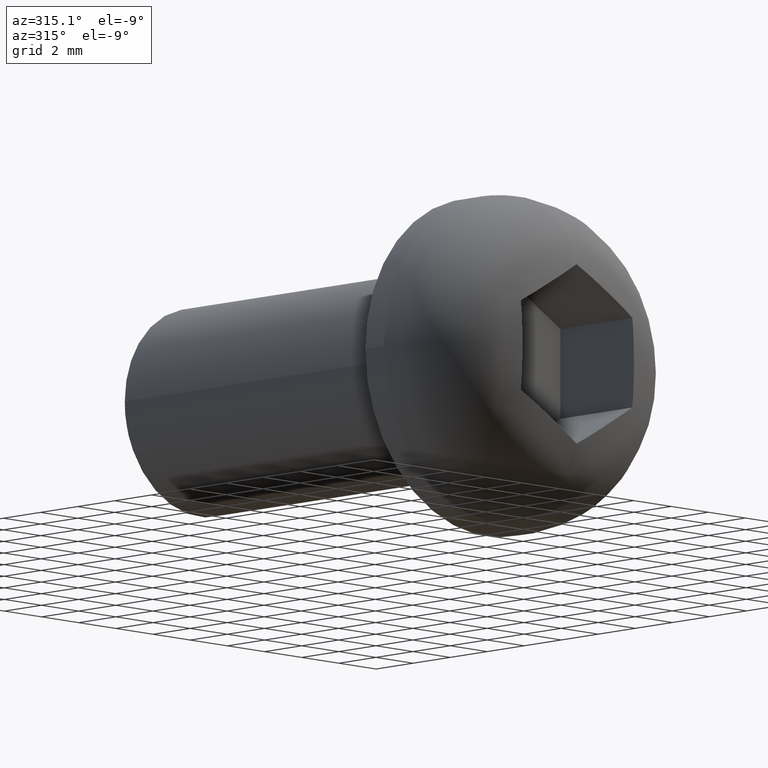
[diagram: clean part render]
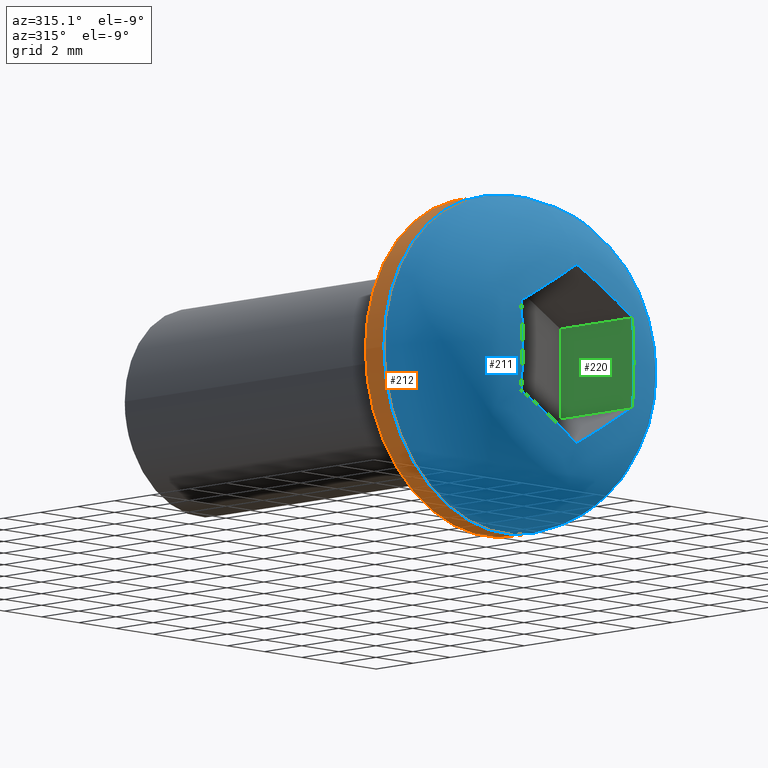
[diagram: same view with three faces highlighted in distinct colors, each labeled with its STEP entity id]
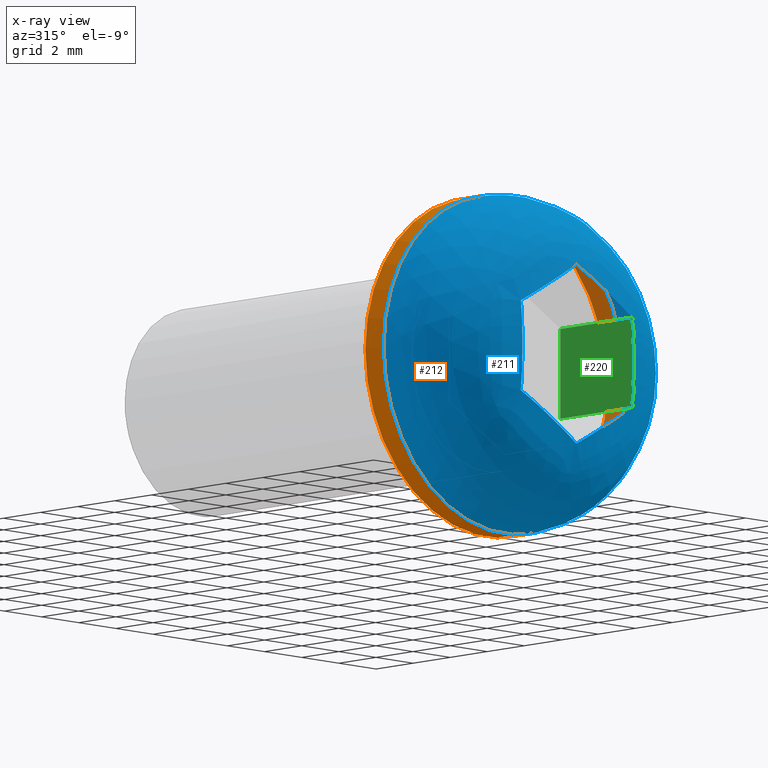
[diagram: x-ray of the same camera — body ghosted, the three highlighted faces saturated]
A machine part, auxiliary view with three faces highlighted in distinct colors.
The next image is the same camera in x-ray (body ghosted, the three faces saturated) — at least one of them is partly hidden behind the body in this view.
Their STEP definitions:

[orange] entity #212 — the highlighted cylindrical surface (bore or boss wall) has radius 6.5 mm, axis along (0, 1, 0).
#26=LINE('',#404,#41);
#41=VECTOR('',#276,6.49999999997408);
#56=CYLINDRICAL_SURFACE('',#249,6.49999999997408);
#59=FACE_OUTER_BOUND('',#72,.T.);
#72=EDGE_LOOP('',(#161,#162,#163,#164,#165));
#85=CIRCLE('',#247,6.49999999997408);
#86=CIRCLE('',#248,6.49999999997408);
#87=CIRCLE('',#250,6.49999999997408);
#106=VERTEX_POINT('',#383);
#107=VERTEX_POINT('',#387);
#109=VERTEX_POINT('',#402);
#126=EDGE_CURVE('',#107,#106,#85,.T.);
#127=EDGE_CURVE('',#106,#107,#86,.T.);
#130=EDGE_CURVE('',#109,#109,#87,.T.);
#131=EDGE_CURVE('',#109,#107,#26,.T.);
#161=ORIENTED_EDGE('',*,*,#130,.F.);
#162=ORIENTED_EDGE('',*,*,#131,.T.);
#163=ORIENTED_EDGE('',*,*,#126,.T.);
#164=ORIENTED_EDGE('',*,*,#127,.T.);
#165=ORIENTED_EDGE('',*,*,#131,.F.);
#212=ADVANCED_FACE('',(#59),#56,.T.);
#247=AXIS2_PLACEMENT_3D('',#388,#268,#269);
#248=AXIS2_PLACEMENT_3D('',#389,#270,#271);
#249=AXIS2_PLACEMENT_3D('',#401,#272,#273);
#250=AXIS2_PLACEMENT_3D('',#403,#274,#275);
#268=DIRECTION('center_axis',(0.,1.,0.));
#269=DIRECTION('ref_axis',(1.,0.,0.));
#270=DIRECTION('center_axis',(0.,1.,0.));
#271=DIRECTION('ref_axis',(1.,0.,0.));
#272=DIRECTION('center_axis',(0.,1.,0.));
#273=DIRECTION('ref_axis',(1.,0.,0.));
#274=DIRECTION('center_axis',(0.,1.,0.));
#275=DIRECTION('ref_axis',(1.,0.,0.));
#276=DIRECTION('',(0.,-1.,0.));
#383=CARTESIAN_POINT('',(2.11831502019625E-15,-0.999999999995907,6.49999999997408));
#387=CARTESIAN_POINT('',(-6.49999999997408,-0.999999999995907,0.));
#388=CARTESIAN_POINT('Origin',(0.,-0.999999999995907,0.));
#389=CARTESIAN_POINT('Origin',(0.,-0.999999999995907,0.));
#401=CARTESIAN_POINT('Origin',(0.,-0.999999999995907,0.));
#402=CARTESIAN_POINT('',(-6.49999999997408,0.,0.));
#403=CARTESIAN_POINT('Origin',(0.,0.,0.));
#404=CARTESIAN_POINT('',(-6.49999999997408,-0.999999999995907,7.96020419442605E-16));

[blue] entity #211 — the highlighted face is a freeform B-spline surface patch.
#58=FACE_OUTER_BOUND('',#71,.T.);
#71=EDGE_LOOP('',(#150,#151,#152,#153,#154,#155,#156,#157,#158,#159,#160));
#85=CIRCLE('',#247,6.49999999997408);
#86=CIRCLE('',#248,6.49999999997408);
#92=(
BOUNDED_CURVE()
B_SPLINE_CURVE(2,(#384,#385,#386),.UNSPECIFIED.,.F.,.F.)
B_SPLINE_CURVE_WITH_KNOTS((3,3),(-1.31910336717967,4.56802477800068E-13),
 .UNSPECIFIED.)
CURVE()
GEOMETRIC_REPRESENTATION_ITEM()
RATIONAL_B_SPLINE_CURVE((0.960110479545512,0.771855393049176,1.))
REPRESENTATION_ITEM('')
);
#93=B_SPLINE_CURVE_WITH_KNOTS('',3,(#351,#352,#353,#354),.UNSPECIFIED.,
 .F.,.F.,(4,4),(1.49072927553184,1.65455197266982),.UNSPECIFIED.);
#94=B_SPLINE_CURVE_WITH_KNOTS('',3,(#356,#357,#358,#359,#360,#361),
 .UNSPECIFIED.,.F.,.F.,(4,2,4),(1.32690657839386,1.49072927553184,1.65455197266982),
 .UNSPECIFIED.);
#95=B_SPLINE_CURVE_WITH_KNOTS('',3,(#363,#364,#365,#366,#367,#368),
 .UNSPECIFIED.,.F.,.F.,(4,2,4),(1.32690657839385,1.49072927553184,1.65455197266982),
 .UNSPECIFIED.);
#96=B_SPLINE_CURVE_WITH_KNOTS('',3,(#370,#371,#372,#373,#374,#375),
 .UNSPECIFIED.,.F.,.F.,(4,2,4),(1.32690657839385,1.49072927553184,1.65455197266982),
 .UNSPECIFIED.);
#97=B_SPLINE_CURVE_WITH_KNOTS('',3,(#377,#378,#379,#380,#381,#382),
 .UNSPECIFIED.,.F.,.F.,(4,2,4),(1.32690657839385,1.49072927553184,1.65455197266982),
 .UNSPECIFIED.);
#98=B_SPLINE_CURVE_WITH_KNOTS('',3,(#391,#392,#393,#394,#395,#396),
 .UNSPECIFIED.,.F.,.F.,(4,2,4),(1.32690657839385,1.49072927553184,1.65455197266982),
 .UNSPECIFIED.);
#99=B_SPLINE_CURVE_WITH_KNOTS('',3,(#397,#398,#399,#400),.UNSPECIFIED.,
 .F.,.F.,(4,4),(1.32690657839386,1.49072927553184),.UNSPECIFIED.);
#100=VERTEX_POINT('',#349);
#101=VERTEX_POINT('',#350);
#102=VERTEX_POINT('',#355);
#103=VERTEX_POINT('',#362);
#104=VERTEX_POINT('',#369);
#105=VERTEX_POINT('',#376);
#106=VERTEX_POINT('',#383);
#107=VERTEX_POINT('',#387);
#108=VERTEX_POINT('',#390);
#120=EDGE_CURVE('',#100,#101,#93,.T.);
#121=EDGE_CURVE('',#101,#102,#94,.T.);
#122=EDGE_CURVE('',#102,#103,#95,.T.);
#123=EDGE_CURVE('',#103,#104,#96,.T.);
#124=EDGE_CURVE('',#104,#105,#97,.T.);
#125=EDGE_CURVE('',#105,#106,#92,.T.);
#126=EDGE_CURVE('',#107,#106,#85,.T.);
#127=EDGE_CURVE('',#106,#107,#86,.T.);
#128=EDGE_CURVE('',#105,#108,#98,.T.);
#129=EDGE_CURVE('',#108,#100,#99,.T.);
#150=ORIENTED_EDGE('',*,*,#120,.T.);
#151=ORIENTED_EDGE('',*,*,#121,.T.);
#152=ORIENTED_EDGE('',*,*,#122,.T.);
#153=ORIENTED_EDGE('',*,*,#123,.T.);
#154=ORIENTED_EDGE('',*,*,#124,.T.);
#155=ORIENTED_EDGE('',*,*,#125,.T.);
#156=ORIENTED_EDGE('',*,*,#126,.F.);
#157=ORIENTED_EDGE('',*,*,#127,.F.);
#158=ORIENTED_EDGE('',*,*,#125,.F.);
#159=ORIENTED_EDGE('',*,*,#128,.T.);
#160=ORIENTED_EDGE('',*,*,#129,.T.);
#210=(
BOUNDED_SURFACE()
B_SPLINE_SURFACE(2,2,((#322,#323,#324,#325,#326,#327,#328,#329,#330),(#331,
#332,#333,#334,#335,#336,#337,#338,#339),(#340,#341,#342,#343,#344,#345,
#346,#347,#348)),.UNSPECIFIED.,.F.,.T.,.F.)
B_SPLINE_SURFACE_WITH_KNOTS((3,3),(3,2,2,2,3),(-4.56802477800068E-13,1.44546849562421),
(-3.14159265358979,-1.5707963267949,0.,1.5707963267949,3.14159265358979),
 .UNSPECIFIED.)
GEOMETRIC_REPRESENTATION_ITEM()
RATIONAL_B_SPLINE_SURFACE(((1.,0.707106781186548,1.,0.707106781186548,1.,
0.707106781186548,1.,0.707106781186548,1.),(0.750000000000716,0.530330085890417,
0.750000000000716,0.530330085890417,0.750000000000716,0.530330085890417,
0.750000000000716,0.530330085890417,0.750000000000716),(1.,0.707106781186548,
1.,0.707106781186548,1.,0.707106781186548,1.,0.707106781186548,1.)))
REPRESENTATION_ITEM('')
SURFACE()
);
#211=ADVANCED_FACE('',(#58),#210,.F.);
#247=AXIS2_PLACEMENT_3D('',#388,#268,#269);
#248=AXIS2_PLACEMENT_3D('',#389,#270,#271);
#268=DIRECTION('center_axis',(0.,1.,0.));
#269=DIRECTION('ref_axis',(1.,0.,0.));
#270=DIRECTION('center_axis',(0.,1.,0.));
#271=DIRECTION('ref_axis',(1.,0.,0.));
#322=CARTESIAN_POINT('Ctrl Pts',(2.91433543963884E-15,-0.999999999995891,
6.49999999997408));
#323=CARTESIAN_POINT('Ctrl Pts',(-6.49999999997408,-0.999999999995899,6.49999999997408));
#324=CARTESIAN_POINT('Ctrl Pts',(-6.49999999997408,-0.999999999995905,1.24900090270172E-15));
#325=CARTESIAN_POINT('Ctrl Pts',(-6.49999999997408,-0.99999999999591,-6.49999999997408));
#326=CARTESIAN_POINT('Ctrl Pts',(2.91433543963884E-15,-0.999999999995902,
-6.49999999997408));
#327=CARTESIAN_POINT('Ctrl Pts',(6.49999999997408,-0.999999999995895,-6.49999999997408));
#328=CARTESIAN_POINT('Ctrl Pts',(6.49999999997409,-0.999999999995889,1.24900090270171E-15));
#329=CARTESIAN_POINT('Ctrl Pts',(6.49999999997408,-0.999999999995883,6.49999999997408));
#330=CARTESIAN_POINT('Ctrl Pts',(2.91433543963884E-15,-0.999999999995891,
6.49999999997408));
#331=CARTESIAN_POINT('Ctrl Pts',(7.15911465258913E-15,-4.52766841472535,
6.4999999999757));
#332=CARTESIAN_POINT('Ctrl Pts',(-6.49999999997569,-4.52766841472536,6.4999999999757));
#333=CARTESIAN_POINT('Ctrl Pts',(-6.49999999997569,-4.52766841472537,4.30805414182356E-15));
#334=CARTESIAN_POINT('Ctrl Pts',(-6.49999999997569,-4.52766841472537,-6.49999999997569));
#335=CARTESIAN_POINT('Ctrl Pts',(7.15911465258913E-15,-4.52766841472536,
-6.49999999997569));
#336=CARTESIAN_POINT('Ctrl Pts',(6.4999999999757,-4.52766841472536,-6.49999999997569));
#337=CARTESIAN_POINT('Ctrl Pts',(6.4999999999757,-4.52766841472535,4.30805414182354E-15));
#338=CARTESIAN_POINT('Ctrl Pts',(6.4999999999757,-4.52766841472534,6.4999999999757));
#339=CARTESIAN_POINT('Ctrl Pts',(7.15911465258913E-15,-4.52766841472535,
6.4999999999757));
#340=CARTESIAN_POINT('Ctrl Pts',(7.68971205421895E-15,-4.96862696657571,
3.));
#341=CARTESIAN_POINT('Ctrl Pts',(-2.99999999999998,-4.96862696657571,3.));
#342=CARTESIAN_POINT('Ctrl Pts',(-2.99999999999998,-4.96862696657571,4.69043579672173E-15));
#343=CARTESIAN_POINT('Ctrl Pts',(-2.99999999999998,-4.96862696657571,-2.99999999999999));
#344=CARTESIAN_POINT('Ctrl Pts',(7.68971205421895E-15,-4.96862696657571,
-2.99999999999999));
#345=CARTESIAN_POINT('Ctrl Pts',(3.,-4.96862696657571,-2.99999999999999));
#346=CARTESIAN_POINT('Ctrl Pts',(3.,-4.9686269665757,4.69043579672172E-15));
#347=CARTESIAN_POINT('Ctrl Pts',(3.,-4.9686269665757,3.));
#348=CARTESIAN_POINT('Ctrl Pts',(7.68971205421895E-15,-4.96862696657571,
3.));
#349=CARTESIAN_POINT('',(3.,-4.96862696657581,0.));
#350=CARTESIAN_POINT('',(3.,-4.88207522795665,-1.73205080756888));
#351=CARTESIAN_POINT('Ctrl Pts',(3.,-4.9686269665757,4.61436444609831E-15));
#352=CARTESIAN_POINT('Ctrl Pts',(3.,-4.9686269665757,-0.546075657126606));
#353=CARTESIAN_POINT('Ctrl Pts',(3.,-4.9550549531712,-1.14432690181362));
#354=CARTESIAN_POINT('Ctrl Pts',(3.,-4.88207522795649,-1.73205080756886));
#355=CARTESIAN_POINT('',(0.,-4.88207522795665,-3.46410161513775));
#356=CARTESIAN_POINT('Ctrl Pts',(2.99999999999998,-4.8820752279565,-1.73205080756889));
#357=CARTESIAN_POINT('Ctrl Pts',(2.49101616720454,-4.9550549531712,-2.02591276044651));
#358=CARTESIAN_POINT('Ctrl Pts',(1.97291539145993,-4.96862696657571,-2.32503838279001));
#359=CARTESIAN_POINT('Ctrl Pts',(1.02708460854008,-4.96862696657571,-2.87111403991662));
#360=CARTESIAN_POINT('Ctrl Pts',(0.508983832795468,-4.9550549531712,-3.17023966226012));
#361=CARTESIAN_POINT('Ctrl Pts',(1.70696790036118E-14,-4.8820752279565,
-3.46410161513775));
#362=CARTESIAN_POINT('',(-3.,-4.88207522795665,-1.73205080756888));
#363=CARTESIAN_POINT('Ctrl Pts',(-1.62370117351429E-14,-4.8820752279565,
-3.46410161513774));
#364=CARTESIAN_POINT('Ctrl Pts',(-0.508983832795463,-4.9550549531712,-3.17023966226013));
#365=CARTESIAN_POINT('Ctrl Pts',(-1.02708460854007,-4.96862696657571,-2.87111403991662));
#366=CARTESIAN_POINT('Ctrl Pts',(-1.97291539145992,-4.96862696657571,-2.32503838279001));
#367=CARTESIAN_POINT('Ctrl Pts',(-2.49101616720453,-4.95505495317121,-2.02591276044651));
#368=CARTESIAN_POINT('Ctrl Pts',(-2.99999999999998,-4.8820752279565,-1.73205080756889));
#369=CARTESIAN_POINT('',(-3.,-4.88207522795665,1.73205080756888));
#370=CARTESIAN_POINT('Ctrl Pts',(-3.,-4.8820752279565,-1.73205080756886));
#371=CARTESIAN_POINT('Ctrl Pts',(-3.,-4.95505495317121,-1.14432690181362));
#372=CARTESIAN_POINT('Ctrl Pts',(-3.,-4.96862696657571,-0.546075657126606));
#373=CARTESIAN_POINT('Ctrl Pts',(-3.,-4.96862696657571,0.546075657126612));
#374=CARTESIAN_POINT('Ctrl Pts',(-3.,-4.9550549531712,1.14432690181362));
#375=CARTESIAN_POINT('Ctrl Pts',(-3.,-4.8820752279565,1.73205080756886));
#376=CARTESIAN_POINT('',(0.,-4.88207522795665,3.46410161513775));
#377=CARTESIAN_POINT('Ctrl Pts',(-2.99999999999998,-4.8820752279565,1.73205080756889));
#378=CARTESIAN_POINT('Ctrl Pts',(-2.49101616720453,-4.9550549531712,2.02591276044651));
#379=CARTESIAN_POINT('Ctrl Pts',(-1.97291539145992,-4.96862696657571,2.32503838279002));
#380=CARTESIAN_POINT('Ctrl Pts',(-1.02708460854007,-4.96862696657571,2.87111403991662));
#381=CARTESIAN_POINT('Ctrl Pts',(-0.508983832795462,-4.9550549531712,3.17023966226013));
#382=CARTESIAN_POINT('Ctrl Pts',(-1.65839564303383E-14,-4.88207522795649,
3.46410161513775));
#383=CARTESIAN_POINT('',(2.11831502019625E-15,-0.999999999995907,6.49999999997408));
#384=CARTESIAN_POINT('Ctrl Pts',(7.58556592205939E-15,-4.8820752279565,
3.46410161513772));
#385=CARTESIAN_POINT('Ctrl Pts',(6.67834419253319E-15,-4.12811906678753,
6.49999999997552));
#386=CARTESIAN_POINT('Ctrl Pts',(2.91433543963884E-15,-0.999999999995891,
6.49999999997408));
#387=CARTESIAN_POINT('',(-6.49999999997408,-0.999999999995907,0.));
#388=CARTESIAN_POINT('Origin',(0.,-0.999999999995907,0.));
#389=CARTESIAN_POINT('Origin',(0.,-0.999999999995907,0.));
#390=CARTESIAN_POINT('',(3.,-4.88207522795665,1.73205080756888));
#391=CARTESIAN_POINT('Ctrl Pts',(1.78329573330416E-14,-4.88207522795649,
3.46410161513775));
#392=CARTESIAN_POINT('Ctrl Pts',(0.508983832795468,-4.9550549531712,3.17023966226012));
#393=CARTESIAN_POINT('Ctrl Pts',(1.02708460854008,-4.9686269665757,2.87111403991662));
#394=CARTESIAN_POINT('Ctrl Pts',(1.97291539145993,-4.9686269665757,2.32503838279001));
#395=CARTESIAN_POINT('Ctrl Pts',(2.49101616720454,-4.9550549531712,2.0259127604465));
#396=CARTESIAN_POINT('Ctrl Pts',(2.99999999999998,-4.88207522795649,1.73205080756889));
#397=CARTESIAN_POINT('Ctrl Pts',(3.,-4.88207522795649,1.73205080756886));
#398=CARTESIAN_POINT('Ctrl Pts',(3.,-4.9550549531712,1.14432690181362));
#399=CARTESIAN_POINT('Ctrl Pts',(3.,-4.9686269665757,0.546075657126612));
#400=CARTESIAN_POINT('Ctrl Pts',(3.,-4.9686269665757,4.68375338513738E-15));

[green] entity #220 — the highlighted planar face has unit normal (-1, 0, 0).
#22=PLANE('',#262);
#34=LINE('',#431,#49);
#36=LINE('',#435,#51);
#37=LINE('',#436,#52);
#49=VECTOR('',#306,3.88207522797666);
#51=VECTOR('',#310,3.88207522797666);
#52=VECTOR('',#311,3.46410161513775);
#67=FACE_OUTER_BOUND('',#81,.T.);
#81=EDGE_LOOP('',(#191,#192,#193,#194,#195));
#93=B_SPLINE_CURVE_WITH_KNOTS('',3,(#351,#352,#353,#354),.UNSPECIFIED.,
 .F.,.F.,(4,4),(1.49072927553184,1.65455197266982),.UNSPECIFIED.);
#99=B_SPLINE_CURVE_WITH_KNOTS('',3,(#397,#398,#399,#400),.UNSPECIFIED.,
 .F.,.F.,(4,4),(1.32690657839386,1.49072927553184),.UNSPECIFIED.);
#100=VERTEX_POINT('',#349);
#101=VERTEX_POINT('',#350);
#108=VERTEX_POINT('',#390);
#117=VERTEX_POINT('',#430);
#118=VERTEX_POINT('',#434);
#120=EDGE_CURVE('',#100,#101,#93,.T.);
#129=EDGE_CURVE('',#108,#100,#99,.T.);
#143=EDGE_CURVE('',#101,#117,#34,.T.);
#145=EDGE_CURVE('',#108,#118,#36,.T.);
#146=EDGE_CURVE('',#117,#118,#37,.T.);
#191=ORIENTED_EDGE('',*,*,#143,.F.);
#192=ORIENTED_EDGE('',*,*,#120,.F.);
#193=ORIENTED_EDGE('',*,*,#129,.F.);
#194=ORIENTED_EDGE('',*,*,#145,.T.);
#195=ORIENTED_EDGE('',*,*,#146,.F.);
#220=ADVANCED_FACE('',(#67),#22,.T.);
#262=AXIS2_PLACEMENT_3D('',#433,#308,#309);
#306=DIRECTION('',(0.,1.,0.));
#308=DIRECTION('center_axis',(-1.,0.,0.));
#309=DIRECTION('ref_axis',(0.,0.,1.));
#310=DIRECTION('',(0.,1.,0.));
#311=DIRECTION('',(0.,0.,1.));
#349=CARTESIAN_POINT('',(3.,-4.96862696657581,0.));
#350=CARTESIAN_POINT('',(3.,-4.88207522795665,-1.73205080756888));
#351=CARTESIAN_POINT('Ctrl Pts',(3.,-4.9686269665757,4.61436444609831E-15));
#352=CARTESIAN_POINT('Ctrl Pts',(3.,-4.9686269665757,-0.546075657126606));
#353=CARTESIAN_POINT('Ctrl Pts',(3.,-4.9550549531712,-1.14432690181362));
#354=CARTESIAN_POINT('Ctrl Pts',(3.,-4.88207522795649,-1.73205080756886));
#390=CARTESIAN_POINT('',(3.,-4.88207522795665,1.73205080756888));
#397=CARTESIAN_POINT('Ctrl Pts',(3.,-4.88207522795649,1.73205080756886));
#398=CARTESIAN_POINT('Ctrl Pts',(3.,-4.9550549531712,1.14432690181362));
#399=CARTESIAN_POINT('Ctrl Pts',(3.,-4.9686269665757,0.546075657126612));
#400=CARTESIAN_POINT('Ctrl Pts',(3.,-4.9686269665757,4.68375338513738E-15));
#430=CARTESIAN_POINT('',(3.,-0.999999999979991,-1.73205080756888));
#431=CARTESIAN_POINT('',(3.,-4.88207522795665,-1.73205080756888));
#433=CARTESIAN_POINT('Origin',(3.,-4.99999999997999,-1.73205080756888));
#434=CARTESIAN_POINT('',(3.,-0.999999999979991,1.73205080756888));
#435=CARTESIAN_POINT('',(3.,-4.88207522795665,1.73205080756888));
#436=CARTESIAN_POINT('',(3.,-0.999999999979991,-1.73205080756888));